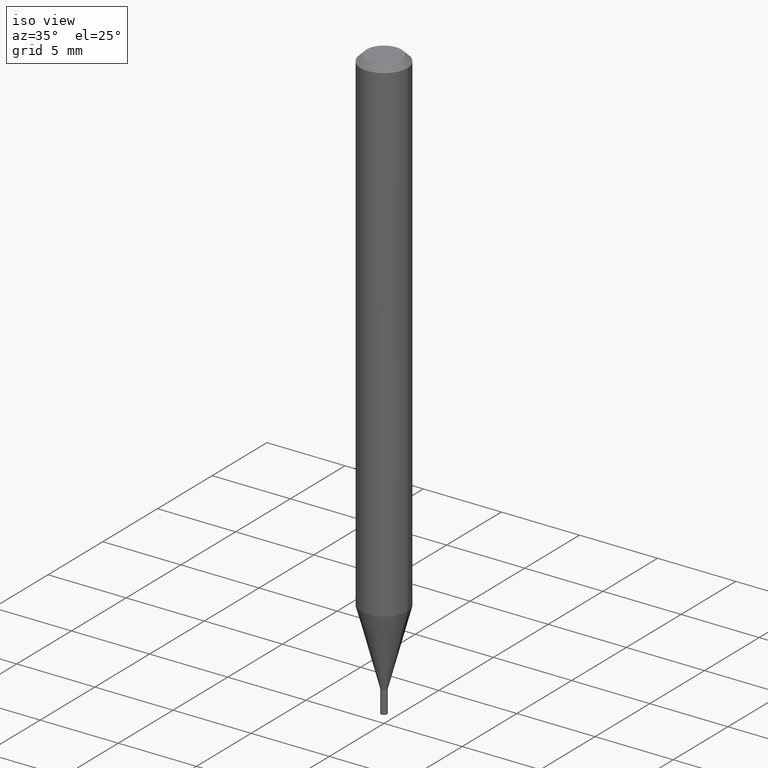
[diagram: clean part render]
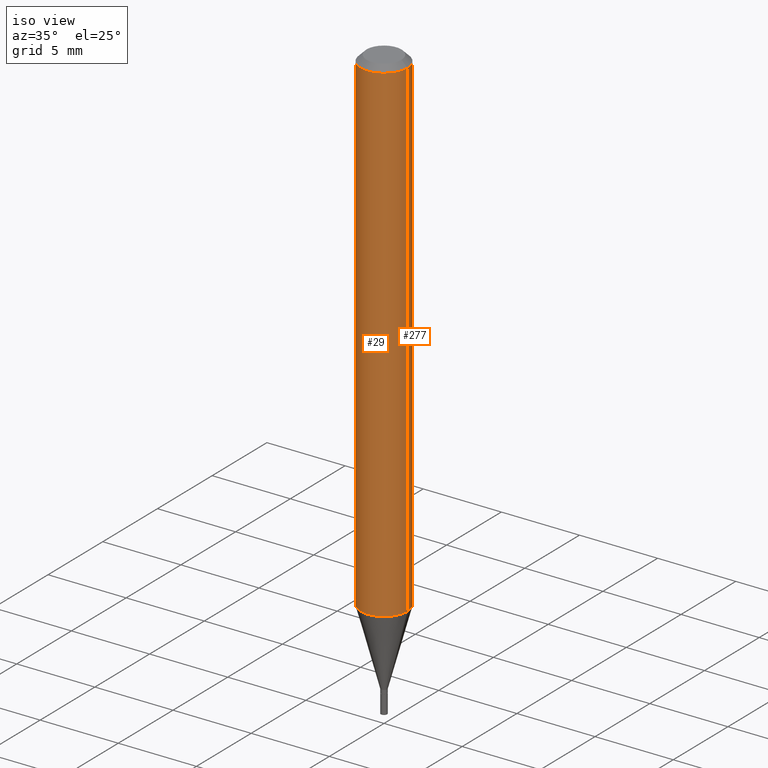
[diagram: same view with one multi-face feature highlighted, each face labeled with its STEP entity id]
A machine part, iso view. The highlighted faces form ONE feature: a constant-radius fillet chain: 2 tangent blend faces with common blend radius 1.4999 mm. The faces share edges in the B-rep.
Their STEP definitions:
[1] entity #277 (Cylinder):
#6 = CARTESIAN_POINT ( 'NONE',  ( -0.05904999999999999832, 4.195754854663391478E-16, -2.904631170795521892E-30 ) ) ;
#18 = CARTESIAN_POINT ( 'NONE',  ( 3.061528859075156697E-29, -4.371051821538309893E-15, -1.251918998652473913 ) ) ;
#26 = AXIS2_PLACEMENT_3D ( 'NONE', #18, #400, #225 ) ;
#40 = CYLINDRICAL_SURFACE ( 'NONE', #319, 0.05904999999999999832 ) ;
#69 = LINE ( 'NONE', #164, #460 ) ;
#74 = LINE ( 'NONE', #6, #185 ) ;
#87 = CARTESIAN_POINT ( 'NONE',  ( 0.05904999999999999832, -4.647161662000212105E-16, -0.01499999999999999944 ) ) ;
#92 = EDGE_CURVE ( 'NONE', #437, #392, #69, .T. ) ;
#103 = AXIS2_PLACEMENT_3D ( 'NONE', #187, #409, #260 ) ;
#146 = FACE_OUTER_BOUND ( 'NONE', #365, .T. ) ;
#150 = DIRECTION ( 'NONE',  ( -2.445468806185136597E-29, 3.491481338843145583E-15, 1.000000000000000000 ) ) ;
#161 = ORIENTED_EDGE ( 'NONE', *, *, #374, .T. ) ;
#164 = CARTESIAN_POINT ( 'NONE',  ( 0.05904999999999999832, -4.123439461173740327E-16, 2.879382386107500220E-30 ) ) ;
#185 = VECTOR ( 'NONE', #234, 39.37007874015748143 ) ;
#187 = CARTESIAN_POINT ( 'NONE',  ( 3.668203209277705088E-31, -5.237222008264718399E-17, -0.01499999999999999944 ) ) ;
#191 = CARTESIAN_POINT ( 'NONE',  ( 0.05904999999999998445, -4.783395767655684024E-15, -1.251918998652473913 ) ) ;
#216 = ORIENTED_EDGE ( 'NONE', *, *, #92, .F. ) ;
#225 = DIRECTION ( 'NONE',  ( 1.000000000000000000, -6.982962677686273021E-15, 0.000000000000000000 ) ) ;
#234 = DIRECTION ( 'NONE',  ( -2.445468806185136877E-29, 3.491481338843145188E-15, 1.000000000000000000 ) ) ;
#257 = ORIENTED_EDGE ( 'NONE', *, *, #429, .F. ) ;
#260 = DIRECTION ( 'NONE',  ( 1.000000000000000000, -6.982962677686266711E-15, 0.000000000000000000 ) ) ;
#264 = CARTESIAN_POINT ( 'NONE',  ( -0.05904999999999998445, -3.951476336071971189E-15, -1.251918998652473913 ) ) ;
#277 = ADVANCED_FACE ( 'NONE', ( #146 ), #40, .T. ) ;
#289 = ORIENTED_EDGE ( 'NONE', *, *, #344, .T. ) ;
#302 = CIRCLE ( 'NONE', #26, 0.05904999999999999832 ) ;
#317 = DIRECTION ( 'NONE',  ( -2.445468806185136877E-29, 3.491481338843145188E-15, 1.000000000000000000 ) ) ;
#319 = AXIS2_PLACEMENT_3D ( 'NONE', #432, #150, #398 ) ;
#340 = VERTEX_POINT ( 'NONE', #393 ) ;
#344 = EDGE_CURVE ( 'NONE', #376, #340, #74, .T. ) ;
#349 = CIRCLE ( 'NONE', #103, 0.05904999999999999832 ) ;
#365 = EDGE_LOOP ( 'NONE', ( #161, #289, #257, #216 ) ) ;
#374 = EDGE_CURVE ( 'NONE', #437, #376, #302, .T. ) ;
#376 = VERTEX_POINT ( 'NONE', #264 ) ;
#392 = VERTEX_POINT ( 'NONE', #87 ) ;
#393 = CARTESIAN_POINT ( 'NONE',  ( -0.05904999999999999832, -1.792136535344139190E-15, -0.01499999999999999944 ) ) ;
#398 = DIRECTION ( 'NONE',  ( 1.000000000000000000, -6.982962677686266711E-15, 4.876176775795936353E-29 ) ) ;
#400 = DIRECTION ( 'NONE',  ( -2.445468806185136597E-29, 3.491481338843145583E-15, 1.000000000000000000 ) ) ;
#409 = DIRECTION ( 'NONE',  ( -2.445468806185136597E-29, 3.491481338843145583E-15, 1.000000000000000000 ) ) ;
#429 = EDGE_CURVE ( 'NONE', #392, #340, #349, .T. ) ;
#432 = CARTESIAN_POINT ( 'NONE',  ( 0.000000000000000000, 0.000000000000000000, 0.000000000000000000 ) ) ;
#437 = VERTEX_POINT ( 'NONE', #191 ) ;
#460 = VECTOR ( 'NONE', #317, 39.37007874015748143 ) ;
[2] entity #29 (Cylinder):
#6 = CARTESIAN_POINT ( 'NONE',  ( -0.05904999999999999832, 4.195754854663391478E-16, -2.904631170795521892E-30 ) ) ;
#17 = AXIS2_PLACEMENT_3D ( 'NONE', #459, #68, #211 ) ;
#21 = ORIENTED_EDGE ( 'NONE', *, *, #344, .F. ) ;
#29 = ADVANCED_FACE ( 'NONE', ( #99 ), #65, .T. ) ;
#65 = CYLINDRICAL_SURFACE ( 'NONE', #209, 0.05904999999999999832 ) ;
#66 = EDGE_CURVE ( 'NONE', #340, #392, #81, .T. ) ;
#68 = DIRECTION ( 'NONE',  ( -2.445468806185136597E-29, 3.491481338843145583E-15, 1.000000000000000000 ) ) ;
#69 = LINE ( 'NONE', #164, #460 ) ;
#74 = LINE ( 'NONE', #6, #185 ) ;
#81 = CIRCLE ( 'NONE', #17, 0.05904999999999999832 ) ;
#87 = CARTESIAN_POINT ( 'NONE',  ( 0.05904999999999999832, -4.647161662000212105E-16, -0.01499999999999999944 ) ) ;
#92 = EDGE_CURVE ( 'NONE', #437, #392, #69, .T. ) ;
#99 = FACE_OUTER_BOUND ( 'NONE', #397, .T. ) ;
#151 = ORIENTED_EDGE ( 'NONE', *, *, #165, .T. ) ;
#164 = CARTESIAN_POINT ( 'NONE',  ( 0.05904999999999999832, -4.123439461173740327E-16, 2.879382386107500220E-30 ) ) ;
#165 = EDGE_CURVE ( 'NONE', #376, #437, #403, .T. ) ;
#185 = VECTOR ( 'NONE', #234, 39.37007874015748143 ) ;
#191 = CARTESIAN_POINT ( 'NONE',  ( 0.05904999999999998445, -4.783395767655684024E-15, -1.251918998652473913 ) ) ;
#209 = AXIS2_PLACEMENT_3D ( 'NONE', #320, #314, #387 ) ;
#211 = DIRECTION ( 'NONE',  ( 1.000000000000000000, -6.982962677686266711E-15, 0.000000000000000000 ) ) ;
#234 = DIRECTION ( 'NONE',  ( -2.445468806185136877E-29, 3.491481338843145188E-15, 1.000000000000000000 ) ) ;
#237 = DIRECTION ( 'NONE',  ( -2.445468806185136597E-29, 3.491481338843145583E-15, 1.000000000000000000 ) ) ;
#240 = CARTESIAN_POINT ( 'NONE',  ( 3.061528859075156697E-29, -4.371051821538309893E-15, -1.251918998652473913 ) ) ;
#264 = CARTESIAN_POINT ( 'NONE',  ( -0.05904999999999998445, -3.951476336071971189E-15, -1.251918998652473913 ) ) ;
#307 = ORIENTED_EDGE ( 'NONE', *, *, #92, .T. ) ;
#314 = DIRECTION ( 'NONE',  ( -2.445468806185136597E-29, 3.491481338843145583E-15, 1.000000000000000000 ) ) ;
#317 = DIRECTION ( 'NONE',  ( -2.445468806185136877E-29, 3.491481338843145188E-15, 1.000000000000000000 ) ) ;
#320 = CARTESIAN_POINT ( 'NONE',  ( 0.000000000000000000, 0.000000000000000000, 0.000000000000000000 ) ) ;
#332 = ORIENTED_EDGE ( 'NONE', *, *, #66, .F. ) ;
#340 = VERTEX_POINT ( 'NONE', #393 ) ;
#344 = EDGE_CURVE ( 'NONE', #376, #340, #74, .T. ) ;
#376 = VERTEX_POINT ( 'NONE', #264 ) ;
#387 = DIRECTION ( 'NONE',  ( 1.000000000000000000, -6.982962677686266711E-15, 4.876176775795936353E-29 ) ) ;
#392 = VERTEX_POINT ( 'NONE', #87 ) ;
#393 = CARTESIAN_POINT ( 'NONE',  ( -0.05904999999999999832, -1.792136535344139190E-15, -0.01499999999999999944 ) ) ;
#397 = EDGE_LOOP ( 'NONE', ( #21, #151, #307, #332 ) ) ;
#403 = CIRCLE ( 'NONE', #440, 0.05904999999999999832 ) ;
#417 = DIRECTION ( 'NONE',  ( 1.000000000000000000, -6.982962677686273021E-15, 0.000000000000000000 ) ) ;
#437 = VERTEX_POINT ( 'NONE', #191 ) ;
#440 = AXIS2_PLACEMENT_3D ( 'NONE', #240, #237, #417 ) ;
#459 = CARTESIAN_POINT ( 'NONE',  ( 3.668203209277705088E-31, -5.237222008264718399E-17, -0.01499999999999999944 ) ) ;
#460 = VECTOR ( 'NONE', #317, 39.37007874015748143 ) ;